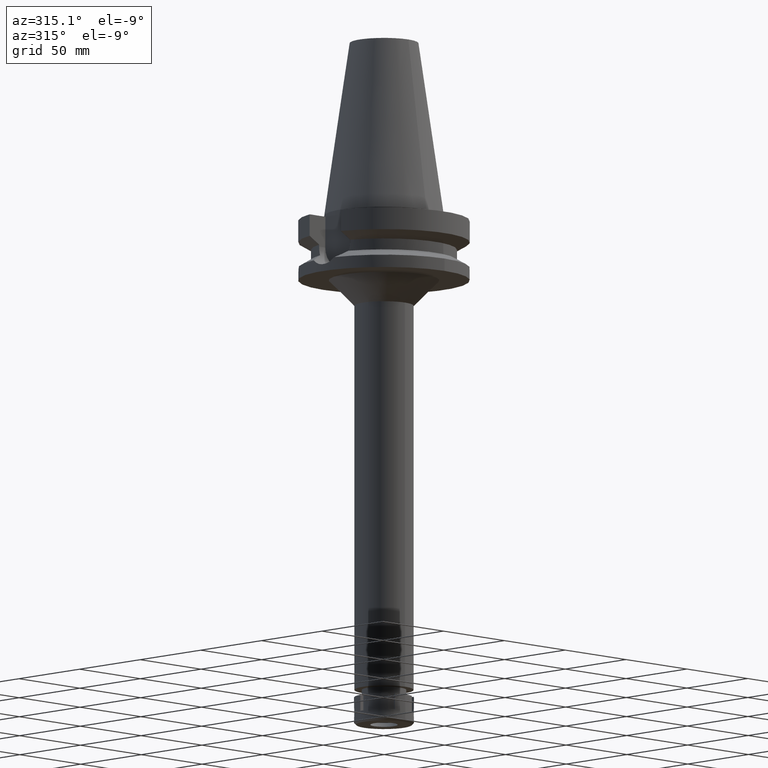
[diagram: clean part render]
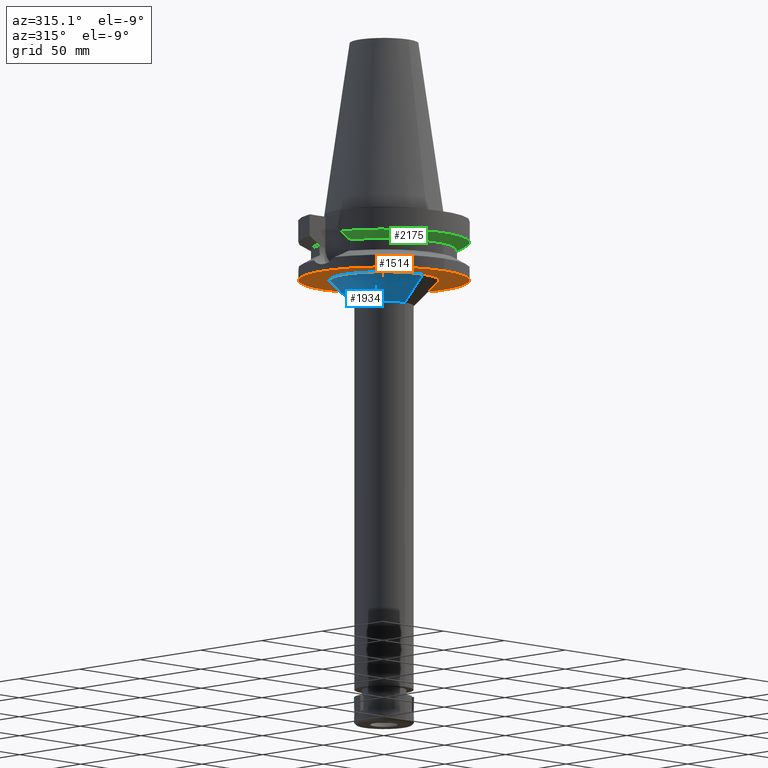
[diagram: same view with three faces highlighted in distinct colors, each labeled with its STEP entity id]
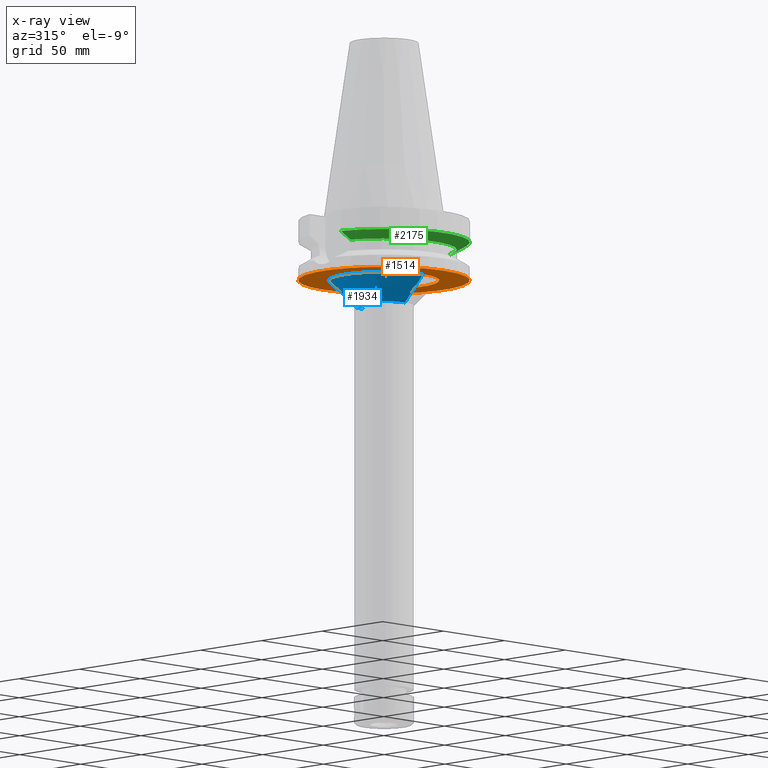
[diagram: x-ray of the same camera — body ghosted, the three highlighted faces saturated]
A machine part, auxiliary view with three faces highlighted in distinct colors.
The next image is the same camera in x-ray (body ghosted, the three faces saturated) — at least one of them is partly hidden behind the body in this view.
Their STEP definitions:

[orange] entity #1514 — the highlighted planar face has unit normal (0, 0, -1).
#44 = CARTESIAN_POINT ( 'NONE',  ( 0.0000000000000000000, 0.0000000000000000000, -38.00000000000000000 ) ) ;
#106 = VERTEX_POINT ( 'NONE', #3506 ) ;
#178 = DIRECTION ( 'NONE',  ( 0.0000000000000000000, 0.0000000000000000000, -1.000000000000000000 ) ) ;
#277 = FACE_BOUND ( 'NONE', #3518, .T. ) ;
#419 = VERTEX_POINT ( 'NONE', #2002 ) ;
#431 = ORIENTED_EDGE ( 'NONE', *, *, #1143, .F. ) ;
#586 = PLANE ( 'NONE',  #3332 ) ;
#671 = EDGE_CURVE ( 'NONE', #2986, #419, #3325, .T. ) ;
#773 = DIRECTION ( 'NONE',  ( 0.0000000000000000000, -1.000000000000000000, 0.0000000000000000000 ) ) ;
#1143 = EDGE_CURVE ( 'NONE', #3120, #106, #2573, .T. ) ;
#1149 = ORIENTED_EDGE ( 'NONE', *, *, #3061, .F. ) ;
#1172 = AXIS2_PLACEMENT_3D ( 'NONE', #1535, #2635, #2351 ) ;
#1251 = DIRECTION ( 'NONE',  ( 0.0000000000000000000, 0.0000000000000000000, 1.000000000000000000 ) ) ;
#1381 = DIRECTION ( 'NONE',  ( 0.0000000000000000000, -1.000000000000000000, 0.0000000000000000000 ) ) ;
#1398 = FACE_OUTER_BOUND ( 'NONE', #2913, .T. ) ;
#1514 = ADVANCED_FACE ( 'NONE', ( #1398, #277 ), #586, .T. ) ;
#1527 = CARTESIAN_POINT ( 'NONE',  ( 0.0000000000000000000, 2.712470195431000112E-14, -38.00000000000000000 ) ) ;
#1535 = CARTESIAN_POINT ( 'NONE',  ( 0.0000000000000000000, 0.0000000000000000000, -38.00000000000000000 ) ) ;
#1667 = ORIENTED_EDGE ( 'NONE', *, *, #3327, .F. ) ;
#1827 = CARTESIAN_POINT ( 'NONE',  ( 0.0000000000000000000, 0.0000000000000000000, -38.00000000000000000 ) ) ;
#1877 = CARTESIAN_POINT ( 'NONE',  ( 0.0000000000000000000, 2.712470195431000112E-14, -38.00000000000000000 ) ) ;
#1918 = CARTESIAN_POINT ( 'NONE',  ( 0.0000000000000000000, -50.00000000000000000, -38.00000000000000000 ) ) ;
#2002 = CARTESIAN_POINT ( 'NONE',  ( 0.0000000000000000000, 50.00000000000000000, -38.00000000000000000 ) ) ;
#2142 = DIRECTION ( 'NONE',  ( 0.0000000000000000000, 1.000000000000000000, 0.0000000000000000000 ) ) ;
#2253 = DIRECTION ( 'NONE',  ( 0.0000000000000000000, 0.0000000000000000000, -1.000000000000000000 ) ) ;
#2351 = DIRECTION ( 'NONE',  ( 0.0000000000000000000, 1.000000000000000000, 0.0000000000000000000 ) ) ;
#2357 = DIRECTION ( 'NONE',  ( 0.0000000000000000000, -1.000000000000000000, 0.0000000000000000000 ) ) ;
#2559 = AXIS2_PLACEMENT_3D ( 'NONE', #1877, #3202, #2142 ) ;
#2573 = CIRCLE ( 'NONE', #3329, 32.25000000000000000 ) ;
#2602 = CARTESIAN_POINT ( 'NONE',  ( 0.0000000000000000000, -32.25000000000000000, -38.00000000000000000 ) ) ;
#2635 = DIRECTION ( 'NONE',  ( 0.0000000000000000000, 0.0000000000000000000, -1.000000000000000000 ) ) ;
#2728 = CIRCLE ( 'NONE', #2559, 50.00000000000000000 ) ;
#2733 = CIRCLE ( 'NONE', #1172, 32.25000000000000000 ) ;
#2913 = EDGE_LOOP ( 'NONE', ( #3587, #1667 ) ) ;
#2986 = VERTEX_POINT ( 'NONE', #1918 ) ;
#3061 = EDGE_CURVE ( 'NONE', #106, #3120, #2733, .T. ) ;
#3120 = VERTEX_POINT ( 'NONE', #2602 ) ;
#3153 = AXIS2_PLACEMENT_3D ( 'NONE', #1527, #1251, #2357 ) ;
#3202 = DIRECTION ( 'NONE',  ( 0.0000000000000000000, 0.0000000000000000000, 1.000000000000000000 ) ) ;
#3325 = CIRCLE ( 'NONE', #3153, 50.00000000000000000 ) ;
#3327 = EDGE_CURVE ( 'NONE', #419, #2986, #2728, .T. ) ;
#3329 = AXIS2_PLACEMENT_3D ( 'NONE', #1827, #178, #773 ) ;
#3332 = AXIS2_PLACEMENT_3D ( 'NONE', #44, #2253, #1381 ) ;
#3506 = CARTESIAN_POINT ( 'NONE',  ( 0.0000000000000000000, 32.25000000000000000, -38.00000000000000000 ) ) ;
#3518 = EDGE_LOOP ( 'NONE', ( #431, #1149 ) ) ;
#3587 = ORIENTED_EDGE ( 'NONE', *, *, #671, .F. ) ;

[blue] entity #1934 — the highlighted conical surface has half-angle 45 deg.
#53 = DIRECTION ( 'NONE',  ( 0.0000000000000000000, 0.0000000000000000000, 1.000000000000000000 ) ) ;
#85 = EDGE_CURVE ( 'NONE', #3120, #2417, #1804, .T. ) ;
#92 = DIRECTION ( 'NONE',  ( 0.0000000000000000000, -1.000000000000000000, 0.0000000000000000000 ) ) ;
#106 = VERTEX_POINT ( 'NONE', #3506 ) ;
#162 = ORIENTED_EDGE ( 'NONE', *, *, #85, .F. ) ;
#178 = DIRECTION ( 'NONE',  ( 0.0000000000000000000, 0.0000000000000000000, -1.000000000000000000 ) ) ;
#205 = CARTESIAN_POINT ( 'NONE',  ( 0.0000000000000000000, -32.25000000000000000, -38.00000000000000000 ) ) ;
#449 = ORIENTED_EDGE ( 'NONE', *, *, #1143, .T. ) ;
#773 = DIRECTION ( 'NONE',  ( 0.0000000000000000000, -1.000000000000000000, 0.0000000000000000000 ) ) ;
#799 = ORIENTED_EDGE ( 'NONE', *, *, #892, .T. ) ;
#892 = EDGE_CURVE ( 'NONE', #106, #2821, #1835, .T. ) ;
#1143 = EDGE_CURVE ( 'NONE', #3120, #106, #2573, .T. ) ;
#1187 = CONICAL_SURFACE ( 'NONE', #2236, 24.75000000000000000, 0.7853981633972997312 ) ;
#1366 = CIRCLE ( 'NONE', #1428, 17.25000000000000000 ) ;
#1428 = AXIS2_PLACEMENT_3D ( 'NONE', #2844, #1797, #92 ) ;
#1547 = DIRECTION ( 'NONE',  ( 0.0000000000000000000, 0.7071067811865474617, -0.7071067811865474617 ) ) ;
#1732 = CARTESIAN_POINT ( 'NONE',  ( 0.0000000000000000000, -17.25000000000000000, -53.00000000000000000 ) ) ;
#1743 = FACE_OUTER_BOUND ( 'NONE', #2068, .T. ) ;
#1760 = CARTESIAN_POINT ( 'NONE',  ( 0.0000000000000000000, 0.0000000000000000000, -45.50000000000000000 ) ) ;
#1797 = DIRECTION ( 'NONE',  ( 0.0000000000000000000, 0.0000000000000000000, -1.000000000000000000 ) ) ;
#1804 = LINE ( 'NONE', #205, #2736 ) ;
#1827 = CARTESIAN_POINT ( 'NONE',  ( 0.0000000000000000000, 0.0000000000000000000, -38.00000000000000000 ) ) ;
#1835 = LINE ( 'NONE', #2750, #3443 ) ;
#1934 = ADVANCED_FACE ( 'NONE', ( #1743 ), #1187, .T. ) ;
#2045 = DIRECTION ( 'NONE',  ( 0.0000000000000000000, 1.000000000000000000, 0.0000000000000000000 ) ) ;
#2068 = EDGE_LOOP ( 'NONE', ( #3029, #162, #449, #799 ) ) ;
#2236 = AXIS2_PLACEMENT_3D ( 'NONE', #1760, #53, #2045 ) ;
#2417 = VERTEX_POINT ( 'NONE', #1732 ) ;
#2573 = CIRCLE ( 'NONE', #3329, 32.25000000000000000 ) ;
#2581 = EDGE_CURVE ( 'NONE', #2417, #2821, #1366, .T. ) ;
#2602 = CARTESIAN_POINT ( 'NONE',  ( 0.0000000000000000000, -32.25000000000000000, -38.00000000000000000 ) ) ;
#2736 = VECTOR ( 'NONE', #1547, 1000.000000000000114 ) ;
#2750 = CARTESIAN_POINT ( 'NONE',  ( 0.0000000000000000000, 32.25000000000000000, -38.00000000000000000 ) ) ;
#2821 = VERTEX_POINT ( 'NONE', #3039 ) ;
#2844 = CARTESIAN_POINT ( 'NONE',  ( 0.0000000000000000000, 0.0000000000000000000, -53.00000000000000000 ) ) ;
#3022 = DIRECTION ( 'NONE',  ( 0.0000000000000000000, -0.7071067811865474617, -0.7071067811865474617 ) ) ;
#3029 = ORIENTED_EDGE ( 'NONE', *, *, #2581, .F. ) ;
#3039 = CARTESIAN_POINT ( 'NONE',  ( 0.0000000000000000000, 17.25000000000000000, -53.00000000000000000 ) ) ;
#3120 = VERTEX_POINT ( 'NONE', #2602 ) ;
#3329 = AXIS2_PLACEMENT_3D ( 'NONE', #1827, #178, #773 ) ;
#3443 = VECTOR ( 'NONE', #3022, 1000.000000000000114 ) ;
#3506 = CARTESIAN_POINT ( 'NONE',  ( 0.0000000000000000000, 32.25000000000000000, -38.00000000000000000 ) ) ;

[green] entity #2175 — the highlighted conical surface has half-angle 60 deg.
#135 = DIRECTION ( 'NONE',  ( 0.9531960443486575674, -0.3023529411764863672, 0.0000000000000000000 ) ) ;
#136 = EDGE_CURVE ( 'NONE', #3351, #3324, #1216, .T. ) ;
#186 = CARTESIAN_POINT ( 'NONE',  ( 45.51180301847264076, -12.85000771248907192, -17.22986482482056303 ) ) ;
#243 = CARTESIAN_POINT ( 'NONE',  ( 40.51083188481999997, -12.84999999999999964, -19.99281925464999787 ) ) ;
#301 = ORIENTED_EDGE ( 'NONE', *, *, #1403, .T. ) ;
#361 = CARTESIAN_POINT ( 'NONE',  ( 0.0000000000000000000, 1.006319759053999930E-14, -19.99281925464999787 ) ) ;
#663 = DIRECTION ( 'NONE',  ( 0.0000000000000000000, 0.0000000000000000000, -1.000000000000000000 ) ) ;
#734 = ORIENTED_EDGE ( 'NONE', *, *, #2640, .F. ) ;
#747 = CARTESIAN_POINT ( 'NONE',  ( 48.32056912779999891, -12.85000385857000005, -15.66265767101000073 ) ) ;
#769 = CARTESIAN_POINT ( 'NONE',  ( 0.0000000000000000000, 1.006319759053999930E-14, -17.82775574519000017 ) ) ;
#872 = CARTESIAN_POINT ( 'NONE',  ( -45.51179901536024630, -12.85000770991706176, -17.22986705878139446 ) ) ;
#923 = ORIENTED_EDGE ( 'NONE', *, *, #136, .T. ) ;
#1052 = B_SPLINE_CURVE_WITH_KNOTS ( 'NONE', 3,
 ( #2790, #872, #2483, #3376 ),
 .UNSPECIFIED., .F., .F.,
 ( 4, 4 ),
 ( 0.0000000000000000000, 1.000000000000000000 ),
 .UNSPECIFIED. ) ;
#1153 = ORIENTED_EDGE ( 'NONE', *, *, #3579, .F. ) ;
#1216 = B_SPLINE_CURVE_WITH_KNOTS ( 'NONE', 3,
 ( #3199, #2390, #186, #747 ),
 .UNSPECIFIED., .F., .F.,
 ( 4, 4 ),
 ( 0.0000000000000000000, 1.000000000000000000 ),
 .UNSPECIFIED. ) ;
#1219 = VERTEX_POINT ( 'NONE', #2186 ) ;
#1403 = EDGE_CURVE ( 'NONE', #1219, #2869, #1052, .T. ) ;
#1558 = DIRECTION ( 'NONE',  ( 0.0000000000000000000, -1.000000000000000000, 0.0000000000000000000 ) ) ;
#1602 = AXIS2_PLACEMENT_3D ( 'NONE', #769, #1878, #2162 ) ;
#1723 = AXIS2_PLACEMENT_3D ( 'NONE', #2989, #2383, #1558 ) ;
#1878 = DIRECTION ( 'NONE',  ( 0.0000000000000000000, 0.0000000000000000000, 1.000000000000000000 ) ) ;
#1997 = CIRCLE ( 'NONE', #3278, 42.50000000000002132 ) ;
#2119 = CONICAL_SURFACE ( 'NONE', #1602, 46.25000000000000000, 1.047197551196400456 ) ;
#2162 = DIRECTION ( 'NONE',  ( 0.0000000000000000000, 1.000000000000000000, 0.0000000000000000000 ) ) ;
#2175 = ADVANCED_FACE ( 'NONE', ( #2998 ), #2119, .T. ) ;
#2186 = CARTESIAN_POINT ( 'NONE',  ( -48.32056912814000071, -12.85000385727999905, -15.66265768250999990 ) ) ;
#2383 = DIRECTION ( 'NONE',  ( 0.0000000000000000000, 0.0000000000000000000, 1.000000000000000000 ) ) ;
#2390 = CARTESIAN_POINT ( 'NONE',  ( 42.90863232045747822, -12.84999314235038703, -18.67324368490022479 ) ) ;
#2483 = CARTESIAN_POINT ( 'NONE',  ( -42.90862489405132152, -12.84999313793018416, -18.67324780319469113 ) ) ;
#2532 = CARTESIAN_POINT ( 'NONE',  ( -40.51083297203000200, -12.84999657244999938, -19.99284555869999735 ) ) ;
#2612 = EDGE_LOOP ( 'NONE', ( #301, #1153, #923, #734 ) ) ;
#2640 = EDGE_CURVE ( 'NONE', #1219, #3324, #2810, .T. ) ;
#2790 = CARTESIAN_POINT ( 'NONE',  ( -48.32056912814000071, -12.85000385727999905, -15.66265768250999990 ) ) ;
#2810 = CIRCLE ( 'NONE', #1723, 50.00000000000000000 ) ;
#2869 = VERTEX_POINT ( 'NONE', #2532 ) ;
#2989 = CARTESIAN_POINT ( 'NONE',  ( 0.0000000000000000000, 1.006319759053999930E-14, -15.66269223573000069 ) ) ;
#2997 = CARTESIAN_POINT ( 'NONE',  ( 48.32056912779999891, -12.85000385857000005, -15.66265767101000073 ) ) ;
#2998 = FACE_OUTER_BOUND ( 'NONE', #2612, .T. ) ;
#3199 = CARTESIAN_POINT ( 'NONE',  ( 40.51083188481999997, -12.84999999999999964, -19.99281925464999787 ) ) ;
#3278 = AXIS2_PLACEMENT_3D ( 'NONE', #361, #663, #135 ) ;
#3324 = VERTEX_POINT ( 'NONE', #2997 ) ;
#3351 = VERTEX_POINT ( 'NONE', #243 ) ;
#3376 = CARTESIAN_POINT ( 'NONE',  ( -40.51083297203000200, -12.84999657244999938, -19.99284555869999735 ) ) ;
#3579 = EDGE_CURVE ( 'NONE', #3351, #2869, #1997, .T. ) ;